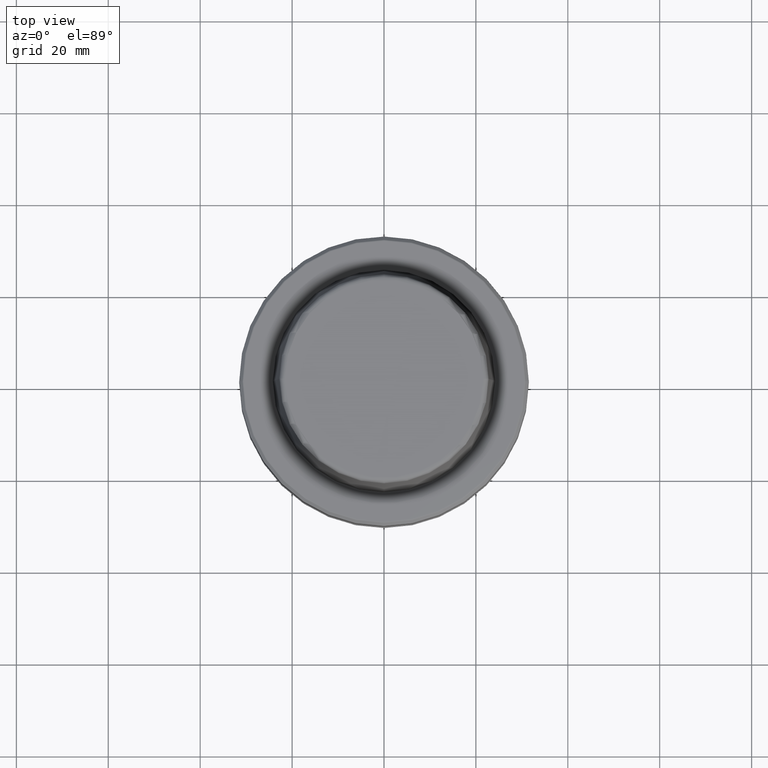
[diagram: clean part render]
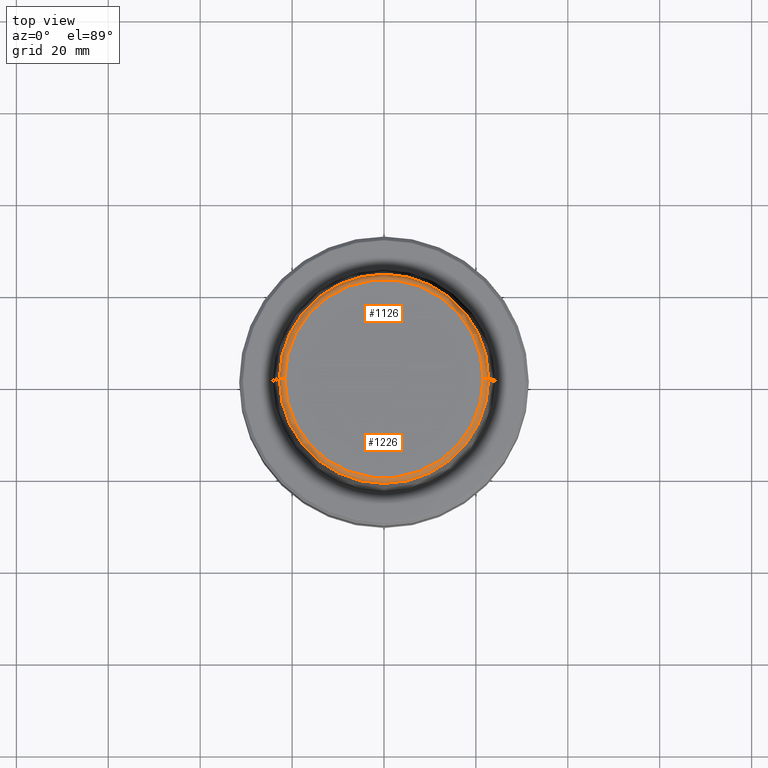
[diagram: same view with one multi-face feature highlighted, each face labeled with its STEP entity id]
A machine part, top view. The highlighted faces form ONE feature: a constant-radius fillet chain: 2 tangent blend faces with common blend radius 1.2 mm. The faces share edges in the B-rep.
Their STEP definitions:
[1] entity #1126 (Torus):
#34 = ORIENTED_EDGE ( 'NONE', *, *, #313, .F. ) ;
#39 = CIRCLE ( 'NONE', #1230, 1.200000000000003100 ) ;
#41 = DIRECTION ( 'NONE',  ( 1.224646799147353200E-016, 1.000000000000000000, 0.0000000000000000000 ) ) ;
#66 = DIRECTION ( 'NONE',  ( 1.000000000000000000, 0.0000000000000000000, 0.0000000000000000000 ) ) ;
#129 = CARTESIAN_POINT ( 'NONE',  ( 21.58108272732117100, 0.0000000000000000000, 31.89999999999999900 ) ) ;
#153 = VERTEX_POINT ( 'NONE', #488 ) ;
#170 = AXIS2_PLACEMENT_3D ( 'NONE', #1238, #677, #66 ) ;
#175 = TOROIDAL_SURFACE ( 'NONE', #245, 21.58108272732117100, 1.200000000000003100 ) ;
#193 = CARTESIAN_POINT ( 'NONE',  ( -21.58108272732117100, 2.716307157494421400E-015, 31.89999999999999900 ) ) ;
#237 = VERTEX_POINT ( 'NONE', #193 ) ;
#245 = AXIS2_PLACEMENT_3D ( 'NONE', #574, #277, #1153 ) ;
#252 = CIRCLE ( 'NONE', #170, 22.77957961851797500 ) ;
#257 = CARTESIAN_POINT ( 'NONE',  ( 22.77957961851797500, 0.0000000000000000000, 30.76004333261571900 ) ) ;
#277 = DIRECTION ( 'NONE',  ( -0.0000000000000000000, -0.0000000000000000000, 1.000000000000000000 ) ) ;
#313 = EDGE_CURVE ( 'NONE', #1010, #859, #39, .T. ) ;
#339 = DIRECTION ( 'NONE',  ( 0.0000000000000000000, 0.0000000000000000000, -1.000000000000000000 ) ) ;
#459 = AXIS2_PLACEMENT_3D ( 'NONE', #501, #1175, #598 ) ;
#488 = CARTESIAN_POINT ( 'NONE',  ( -22.77957961851797500, 2.789693926574032200E-015, 30.76004333261571900 ) ) ;
#501 = CARTESIAN_POINT ( 'NONE',  ( 0.0000000000000000000, 0.0000000000000000000, 31.89999999999999900 ) ) ;
#573 = EDGE_LOOP ( 'NONE', ( #1164, #973, #754, #34 ) ) ;
#574 = CARTESIAN_POINT ( 'NONE',  ( 0.0000000000000000000, 0.0000000000000000000, 30.69999999999999200 ) ) ;
#598 = DIRECTION ( 'NONE',  ( 1.000000000000000000, 0.0000000000000000000, 0.0000000000000000000 ) ) ;
#616 = EDGE_CURVE ( 'NONE', #859, #237, #1046, .T. ) ;
#653 = CARTESIAN_POINT ( 'NONE',  ( -21.58108272732117100, 2.642920388414810300E-015, 30.69999999999999200 ) ) ;
#676 = AXIS2_PLACEMENT_3D ( 'NONE', #653, #41, #763 ) ;
#677 = DIRECTION ( 'NONE',  ( -0.0000000000000000000, -0.0000000000000000000, 1.000000000000000000 ) ) ;
#754 = ORIENTED_EDGE ( 'NONE', *, *, #616, .F. ) ;
#763 = DIRECTION ( 'NONE',  ( -1.000000000000000000, 1.224646799147353200E-016, 0.0000000000000000000 ) ) ;
#859 = VERTEX_POINT ( 'NONE', #129 ) ;
#935 = CARTESIAN_POINT ( 'NONE',  ( 21.58108272732117100, 0.0000000000000000000, 30.69999999999999200 ) ) ;
#955 = EDGE_CURVE ( 'NONE', #153, #237, #1263, .T. ) ;
#957 = DIRECTION ( 'NONE',  ( 0.0000000000000000000, -1.000000000000000000, 0.0000000000000000000 ) ) ;
#973 = ORIENTED_EDGE ( 'NONE', *, *, #955, .T. ) ;
#1010 = VERTEX_POINT ( 'NONE', #257 ) ;
#1018 = FACE_OUTER_BOUND ( 'NONE', #573, .T. ) ;
#1046 = CIRCLE ( 'NONE', #459, 21.58108272732117100 ) ;
#1109 = EDGE_CURVE ( 'NONE', #1010, #153, #252, .T. ) ;
#1126 = ADVANCED_FACE ( 'NONE', ( #1018 ), #175, .T. ) ;
#1153 = DIRECTION ( 'NONE',  ( 1.000000000000000000, 0.0000000000000000000, 0.0000000000000000000 ) ) ;
#1164 = ORIENTED_EDGE ( 'NONE', *, *, #1109, .T. ) ;
#1175 = DIRECTION ( 'NONE',  ( -0.0000000000000000000, -0.0000000000000000000, 1.000000000000000000 ) ) ;
#1230 = AXIS2_PLACEMENT_3D ( 'NONE', #935, #957, #339 ) ;
#1238 = CARTESIAN_POINT ( 'NONE',  ( 0.0000000000000000000, 0.0000000000000000000, 30.76004333261571900 ) ) ;
#1263 = CIRCLE ( 'NONE', #676, 1.200000000000003100 ) ;
[2] entity #1226 (Torus):
#38 = ORIENTED_EDGE ( 'NONE', *, *, #792, .T. ) ;
#39 = CIRCLE ( 'NONE', #1230, 1.200000000000003100 ) ;
#41 = DIRECTION ( 'NONE',  ( 1.224646799147353200E-016, 1.000000000000000000, 0.0000000000000000000 ) ) ;
#122 = DIRECTION ( 'NONE',  ( -0.0000000000000000000, -0.0000000000000000000, 1.000000000000000000 ) ) ;
#129 = CARTESIAN_POINT ( 'NONE',  ( 21.58108272732117100, 0.0000000000000000000, 31.89999999999999900 ) ) ;
#153 = VERTEX_POINT ( 'NONE', #488 ) ;
#193 = CARTESIAN_POINT ( 'NONE',  ( -21.58108272732117100, 2.716307157494421400E-015, 31.89999999999999900 ) ) ;
#203 = EDGE_LOOP ( 'NONE', ( #1130, #38, #902, #601 ) ) ;
#237 = VERTEX_POINT ( 'NONE', #193 ) ;
#257 = CARTESIAN_POINT ( 'NONE',  ( 22.77957961851797500, 0.0000000000000000000, 30.76004333261571900 ) ) ;
#313 = EDGE_CURVE ( 'NONE', #1010, #859, #39, .T. ) ;
#339 = DIRECTION ( 'NONE',  ( 0.0000000000000000000, 0.0000000000000000000, -1.000000000000000000 ) ) ;
#356 = CIRCLE ( 'NONE', #710, 22.77957961851797500 ) ;
#402 = DIRECTION ( 'NONE',  ( 1.000000000000000000, 0.0000000000000000000, 0.0000000000000000000 ) ) ;
#488 = CARTESIAN_POINT ( 'NONE',  ( -22.77957961851797500, 2.789693926574032200E-015, 30.76004333261571900 ) ) ;
#533 = DIRECTION ( 'NONE',  ( -0.0000000000000000000, -0.0000000000000000000, 1.000000000000000000 ) ) ;
#593 = TOROIDAL_SURFACE ( 'NONE', #1019, 21.58108272732117100, 1.200000000000003100 ) ;
#601 = ORIENTED_EDGE ( 'NONE', *, *, #803, .F. ) ;
#653 = CARTESIAN_POINT ( 'NONE',  ( -21.58108272732117100, 2.642920388414810300E-015, 30.69999999999999200 ) ) ;
#676 = AXIS2_PLACEMENT_3D ( 'NONE', #653, #41, #763 ) ;
#693 = FACE_OUTER_BOUND ( 'NONE', #203, .T. ) ;
#710 = AXIS2_PLACEMENT_3D ( 'NONE', #1110, #533, #1199 ) ;
#738 = CARTESIAN_POINT ( 'NONE',  ( 0.0000000000000000000, 0.0000000000000000000, 31.89999999999999900 ) ) ;
#763 = DIRECTION ( 'NONE',  ( -1.000000000000000000, 1.224646799147353200E-016, 0.0000000000000000000 ) ) ;
#792 = EDGE_CURVE ( 'NONE', #153, #1010, #356, .T. ) ;
#800 = CARTESIAN_POINT ( 'NONE',  ( 0.0000000000000000000, 0.0000000000000000000, 30.69999999999999200 ) ) ;
#803 = EDGE_CURVE ( 'NONE', #237, #859, #871, .T. ) ;
#834 = DIRECTION ( 'NONE',  ( 1.000000000000000000, 0.0000000000000000000, 0.0000000000000000000 ) ) ;
#859 = VERTEX_POINT ( 'NONE', #129 ) ;
#871 = CIRCLE ( 'NONE', #1247, 21.58108272732117100 ) ;
#902 = ORIENTED_EDGE ( 'NONE', *, *, #313, .T. ) ;
#935 = CARTESIAN_POINT ( 'NONE',  ( 21.58108272732117100, 0.0000000000000000000, 30.69999999999999200 ) ) ;
#955 = EDGE_CURVE ( 'NONE', #153, #237, #1263, .T. ) ;
#957 = DIRECTION ( 'NONE',  ( 0.0000000000000000000, -1.000000000000000000, 0.0000000000000000000 ) ) ;
#1010 = VERTEX_POINT ( 'NONE', #257 ) ;
#1019 = AXIS2_PLACEMENT_3D ( 'NONE', #800, #1255, #402 ) ;
#1110 = CARTESIAN_POINT ( 'NONE',  ( 0.0000000000000000000, 0.0000000000000000000, 30.76004333261571900 ) ) ;
#1130 = ORIENTED_EDGE ( 'NONE', *, *, #955, .F. ) ;
#1199 = DIRECTION ( 'NONE',  ( 1.000000000000000000, 0.0000000000000000000, 0.0000000000000000000 ) ) ;
#1226 = ADVANCED_FACE ( 'NONE', ( #693 ), #593, .T. ) ;
#1230 = AXIS2_PLACEMENT_3D ( 'NONE', #935, #957, #339 ) ;
#1247 = AXIS2_PLACEMENT_3D ( 'NONE', #738, #122, #834 ) ;
#1255 = DIRECTION ( 'NONE',  ( -0.0000000000000000000, -0.0000000000000000000, 1.000000000000000000 ) ) ;
#1263 = CIRCLE ( 'NONE', #676, 1.200000000000003100 ) ;